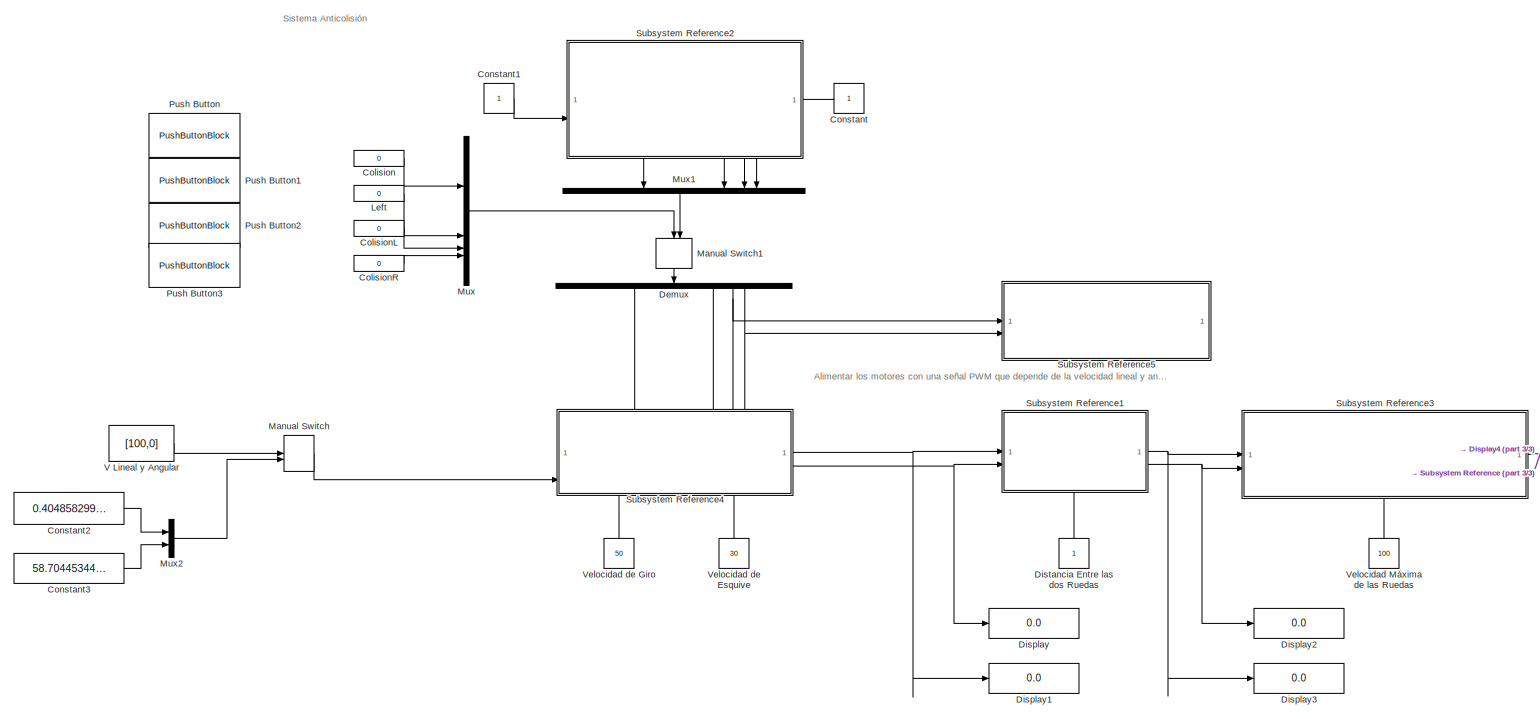
[diagram: root canvas - part 1/3, most of the canvas]
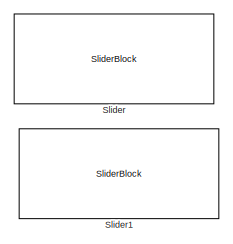
[diagram: root canvas - part 2/3, bottom left region]
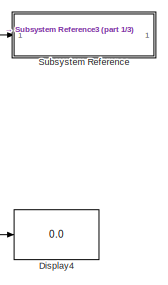
[diagram: root canvas - part 3/3, bottom right region]
MODEL slx_2b84658c4156
KIND model
CONFIG AbsTol = auto
CONFIG EnableMultiTasking = on
CONFIG FixedStep = auto
CONFIG MaxStep = auto
CONFIG MinStep = auto
CONFIG RelTol = 1e-3
CONFIG SampleTimeConstraint = Unconstrained
CONFIG SolverName = FixedStepAuto
CONFIG StartTime = 0.0
CONFIG StopTime = inf
BLOCK [Constant] Colision
  Value = 0
BLOCK [Constant] ColisionL
  Value = 0
BLOCK [Constant] ColisionR
  Value = 0
BLOCK [Constant] Constant
BLOCK [Constant] Constant1
BLOCK [Constant] Constant2
  Value = 0.4048582995951335
BLOCK [Constant] Constant3
  Value = 58.70445344129556
BLOCK [Demux] Demux
  NameLocation = left
BLOCK [Display] Display
  Decimation = 1
BLOCK [Display] Display1
  Decimation = 1
BLOCK [Display] Display2
  Decimation = 1
BLOCK [Display] Display3
  Decimation = 1
BLOCK [Display] Display4
  Decimation = 1
BLOCK [Constant] Distancia Entre las dos Ruedas
  NameLocation = right
BLOCK [Constant] Left
  Value = 0
BLOCK [ManualSwitch] Manual Switch
  CurrentSetting = 0
BLOCK [ManualSwitch] Manual Switch1
  NameLocation = left
BLOCK [Mux] Mux
  DisplayOption = bar
BLOCK [Mux] Mux1
  DisplayOption = bar
  NameLocation = left
BLOCK [Mux] Mux2
  DisplayOption = bar
  Inputs = 2
BLOCK [PushButtonBlock] Push Button
  ButtonText = Colision
  ButtonType = Latch
  OffValue = 0.000000
BLOCK [PushButtonBlock] Push Button1
  ButtonText = Left
  ButtonType = Latch
  OffValue = 0.000000
BLOCK [PushButtonBlock] Push Button2
  ButtonText = ColisionL
  ButtonType = Latch
  OffValue = 0.000000
BLOCK [PushButtonBlock] Push Button3
  ButtonText = ColisionR
  ButtonType = Latch
  OffValue = 0.000000
BLOCK [SliderBlock] Slider
  ScaleMin = -100
BLOCK [SliderBlock] Slider1
  ScaleMin = -100
BLOCK [SubSystem] Subsystem Reference
  ReferencedSubsystem = Motores
BLOCK [SubSystem] Subsystem Reference1
  PortSchema = {"entries":[{"content":{"sides":[{"content":{"connectorIds":["In1","In2"]},"type":"ConnectorPlacement.EquallySpacedRectSide","uuid":"d84dcb5e-3d1f-491a-afee-794ad5554a2e"},{"content":{"connectorIds":["Out1","Out2"],"side":"RIGHT"},"type":"ConnectorPlacement.EquallySpacedRectSide","uuid":"a0418b62-0e7f-41b6-9229-39e60bbbb316"},{"content":{"side":"TOP"},"type":"ConnectorPlacement.EquallySpacedRectSi...<+384ch>
  ReferencedSubsystem = Vel_Ruedas
BLOCK [SubSystem] Subsystem Reference2
  PortSchema = {"entries":[{"content":{"sides":[{"content":{"connectorIds":["In2"]},"type":"ConnectorPlacement.EquallySpacedRectSide","uuid":"408cd73f-1857-4da1-ae96-c05435cac705"},{"content":{"connectorIds":["In1"],"side":"RIGHT"},"type":"ConnectorPlacement.EquallySpacedRectSide","uuid":"c558c647-ecf2-46f4-93b3-68ffd7ab6733"},{"content":{"side":"TOP"},"type":"ConnectorPlacement.EquallySpacedRectSide","uuid":"d0...<+392ch>
  ReferencedSubsystem = Colision
BLOCK [SubSystem] Subsystem Reference3
  NameLocation = top
  PortSchema = {"entries":[{"content":{"sides":[{"content":{"connectorIds":["In1","In2"]},"type":"ConnectorPlacement.EquallySpacedRectSide","uuid":"d4b2428c-e0ec-438f-b8c2-c34143e0f9eb"},{"content":{"connectorIds":["Out1"],"side":"RIGHT"},"type":"ConnectorPlacement.EquallySpacedRectSide","uuid":"3bf3e00d-c923-4f77-a6ba-e5133a80a898"},{"content":{"side":"TOP"},"type":"ConnectorPlacement.EquallySpacedRectSide","uu...<+377ch>
  ReferencedSubsystem = Vel_Ruedas_PWM
BLOCK [SubSystem] Subsystem Reference4
  PortSchema = {"entries":[{"content":{"sides":[{"content":{"connectorIds":["In5"]},"type":"ConnectorPlacement.EquallySpacedRectSide","uuid":"fd240e3c-6394-4405-8519-0479f77d2d36"},{"content":{"connectorIds":["Out1","Out2"],"side":"RIGHT"},"type":"ConnectorPlacement.EquallySpacedRectSide","uuid":"6add68b4-b4ce-48ef-b5c5-69d1ef184884"},{"content":{"connectorIds":["In1","In2","In3","In4"],"side":"TOP"},"type":"Con...<+425ch>
  ReferencedSubsystem = ME_Colision
BLOCK [SubSystem] Subsystem Reference5
  ReferencedSubsystem = Leds_Colision
BLOCK [Constant] V Lineal y Angular
  Value = [100,0]
BLOCK [Constant] Velocidad Máxima de las Ruedas
  NameLocation = right
  Value = 100
BLOCK [Constant] Velocidad de Esquive
  NameLocation = right
  Value = 30
BLOCK [Constant] Velocidad de Giro
  NameLocation = right
  Value = 50
ANNOTATION (root): Alimentar los motores con una señal PWM que depende de la velocidad lineal y angular que queramos del motor
ANNOTATION (root): Sistema Anticolisión
LINE Colision:1 -> Mux:1
LINE ColisionL:1 -> Mux:3
LINE ColisionR:1 -> Mux:4
LINE Constant1:1 -> Subsystem Reference2:2
LINE Constant2:1 -> Mux2:1
LINE Constant3:1 -> Mux2:2
LINE Constant:1 -> Subsystem Reference2:1
LINE Demux:1 -> Subsystem Reference4:1
LINE Demux:2 -> Subsystem Reference4:2
NET Demux:3 -> Subsystem Reference4:3, Subsystem Reference5:1
NET Demux:4 -> Subsystem Reference4:4, Subsystem Reference5:2
LINE Distancia Entre las dos Ruedas:1 -> Subsystem Reference1:3
LINE Left:1 -> Mux:2
LINE Manual Switch1:1 -> Demux:1
LINE Manual Switch:1 -> Subsystem Reference4:5
LINE Mux1:1 -> Manual Switch1:2
LINE Mux2:1 -> Manual Switch:2
LINE Mux:1 -> Manual Switch1:1
NET Subsystem Reference1:1 -> Display3:1, Subsystem Reference3:1
NET Subsystem Reference1:2 -> Display2:1, Subsystem Reference3:2
LINE Subsystem Reference2:1 -> Mux1:1
LINE Subsystem Reference2:2 -> Mux1:2
LINE Subsystem Reference2:3 -> Mux1:3
LINE Subsystem Reference2:4 -> Mux1:4
NET Subsystem Reference3:1 -> Display4:1, Subsystem Reference:1
NET Subsystem Reference4:1 -> Display1:1, Subsystem Reference1:1
NET Subsystem Reference4:2 -> Display:1, Subsystem Reference1:2
LINE V Lineal y Angular:1 -> Manual Switch:1
LINE Velocidad Máxima de las Ruedas:1 -> Subsystem Reference3:3
LINE Velocidad de Esquive:1 -> Subsystem Reference4:6
LINE Velocidad de Giro:1 -> Subsystem Reference4:7
note: NET lines group one-source signal fan-out (src -> all destinations, sorted); 1:1 wires keep LINE
